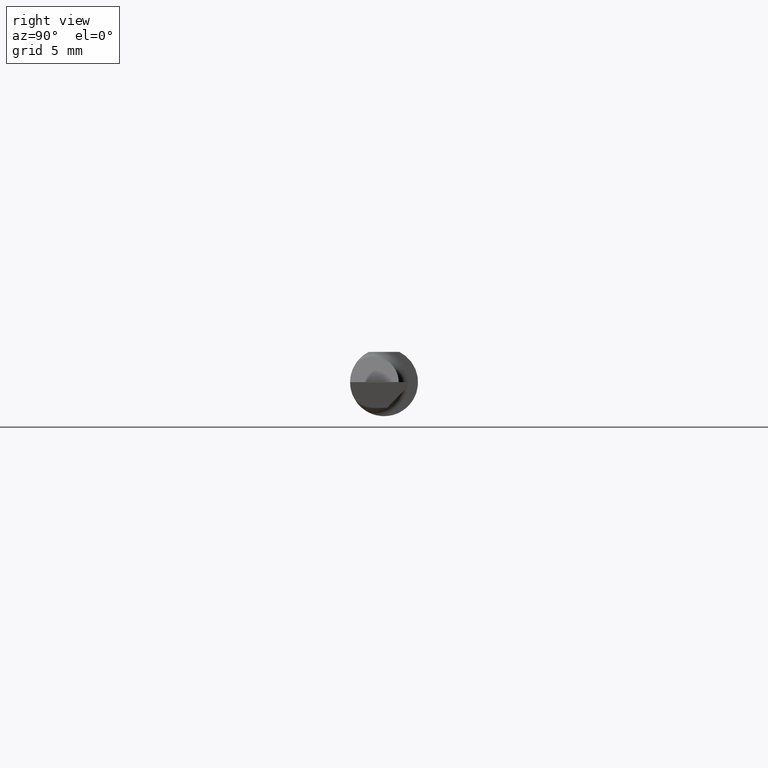
[diagram: clean part render]
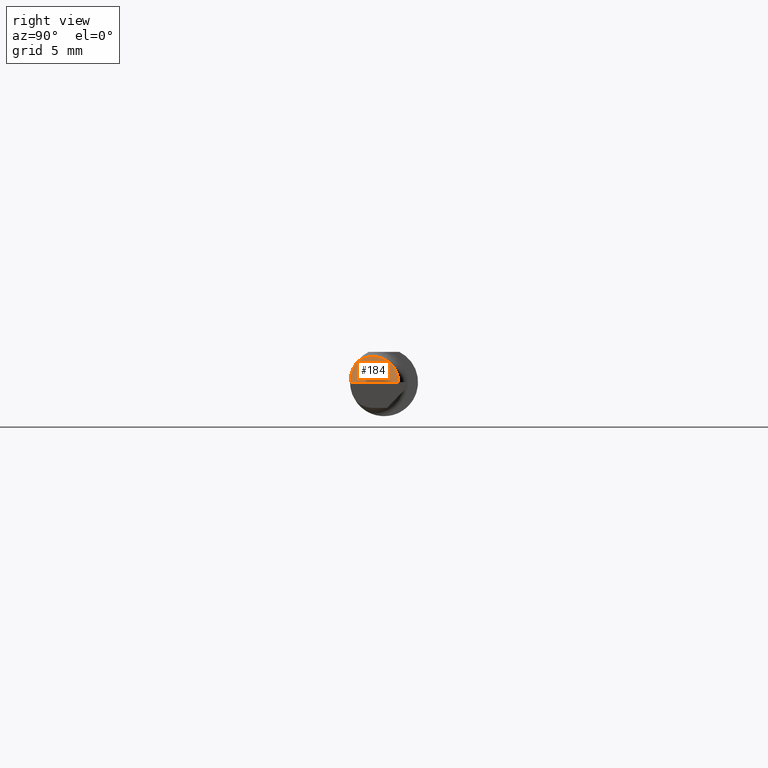
[diagram: same view with one face highlighted and labeled with its STEP entity id]
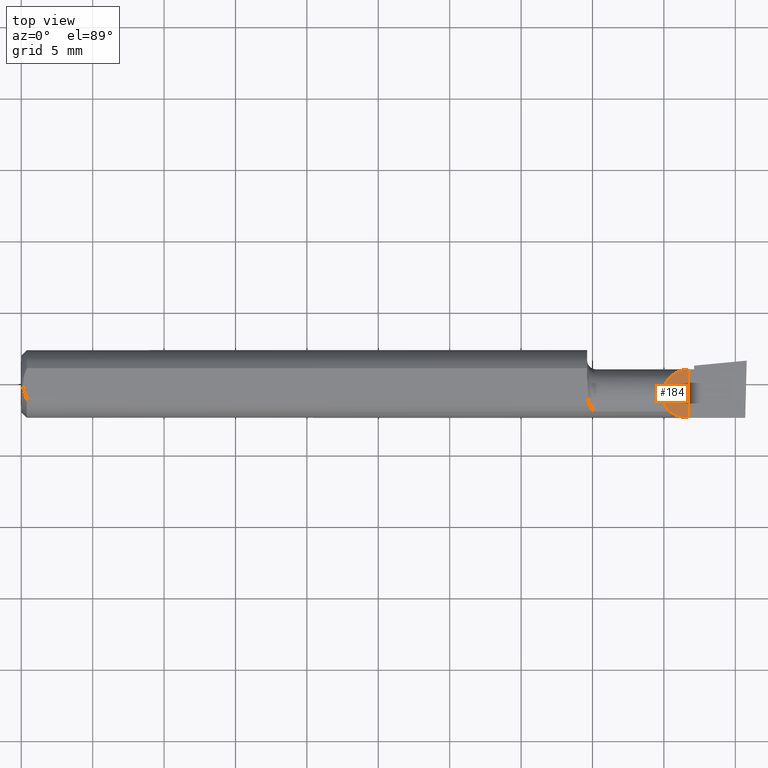
[diagram: same view with one face highlighted and labeled with its STEP entity id]
A machine part, right view. The second image highlights one B-rep face of the part: STEP entity #184.
A second angle (top view) of the same face is appended — the face is thin or edge-on in the first view.
In plain terms, the highlighted planar face has unit normal (-0.7071, 0, -0.7071).
Its self-contained STEP definition (entity closure, byte-faithful):
#11 = VERTEX_POINT ( 'NONE', #61 ) ;
#20 = VERTEX_POINT ( 'NONE', #417 ) ;
#22 = CARTESIAN_POINT ( 'NONE',  ( 1.840000000000000080, -0.09360000000000005815, 1.959434878635762025E-17 ) ) ;
#41 = EDGE_CURVE ( 'NONE', #577, #20, #498, .T. ) ;
#61 = CARTESIAN_POINT ( 'NONE',  ( 1.840000000000000080, -0.09360000000000005815, 1.959434878635762025E-17 ) ) ;
#80 = ORIENTED_EDGE ( 'NONE', *, *, #562, .F. ) ;
#89 =( BOUNDED_CURVE ( )  B_SPLINE_CURVE ( 3, ( #22, #438, #162, #391 ),
 .UNSPECIFIED., .F., .T. ) 
 B_SPLINE_CURVE_WITH_KNOTS ( ( 4, 4 ),
 ( 4.712388980384689674, 5.327100436569646824 ),
 .UNSPECIFIED. ) 
 CURVE ( )  GEOMETRIC_REPRESENTATION_ITEM ( )  RATIONAL_B_SPLINE_CURVE ( ( 1.000000000000000000, 0.9687579316594155943, 0.9687579316594155943, 1.000000000000000000 ) ) 
 REPRESENTATION_ITEM ( '' )  );
#157 = DIRECTION ( 'NONE',  ( -0.7071067811865433539, 0.0000000000000000000, -0.7071067811865516806 ) ) ;
#162 = CARTESIAN_POINT ( 'NONE',  ( 1.801938678439108932, -0.08770433171880961942, 0.03806132156089080121 ) ) ;
#173 = AXIS2_PLACEMENT_3D ( 'NONE', #345, #157, #387 ) ;
#184 = ADVANCED_FACE ( 'NONE', ( #495 ), #208, .F. ) ;
#208 = PLANE ( 'NONE',  #173 ) ;
#233 = ORIENTED_EDGE ( 'NONE', *, *, #41, .F. ) ;
#238 = CARTESIAN_POINT ( 'NONE',  ( 1.786018743734982150, -0.07646557377049187365, 0.05398125626501727031 ) ) ;
#259 = EDGE_CURVE ( 'NONE', #11, #20, #467, .T. ) ;
#260 = CARTESIAN_POINT ( 'NONE',  ( 1.840000000000000080, -0.2500000000000000555, 1.959434878635762025E-17 ) ) ;
#283 = CARTESIAN_POINT ( 'NONE',  ( 1.769987205483423143, 0.04039999999999997760, 0.07001279451657600739 ) ) ;
#303 = CARTESIAN_POINT ( 'NONE',  ( 1.786018743734982150, -0.07646557377049187365, 0.05398125626501727031 ) ) ;
#345 = CARTESIAN_POINT ( 'NONE',  ( 1.840000000000000080, -0.2500000000000000555, 1.959434878635762025E-17 ) ) ;
#375 = CARTESIAN_POINT ( 'NONE',  ( 1.840000000000000080, 0.04039999999999989433, 1.959434878635762025E-17 ) ) ;
#387 = DIRECTION ( 'NONE',  ( -0.7071067811865516806, 0.0000000000000000000, 0.7071067811865433539 ) ) ;
#391 = CARTESIAN_POINT ( 'NONE',  ( 1.786018743734982150, -0.07646557377049187365, 0.05398125626501727031 ) ) ;
#417 = CARTESIAN_POINT ( 'NONE',  ( 1.840000000000000080, 0.04039999999999989433, 1.959434878635762025E-17 ) ) ;
#438 = CARTESIAN_POINT ( 'NONE',  ( 1.820512722067858524, -0.09360000000000003040, 0.01948727793214133017 ) ) ;
#467 = LINE ( 'NONE', #260, #479 ) ;
#470 = ORIENTED_EDGE ( 'NONE', *, *, #259, .T. ) ;
#479 = VECTOR ( 'NONE', #594, 39.37007874015748143 ) ;
#495 = FACE_OUTER_BOUND ( 'NONE', #546, .T. ) ;
#498 =( BOUNDED_CURVE ( )  B_SPLINE_CURVE ( 3, ( #238, #558, #283, #375 ),
 .UNSPECIFIED., .F., .T. ) 
 B_SPLINE_CURVE_WITH_KNOTS ( ( 4, 4 ),
 ( 5.577815324852164025, 7.853981633974482790 ),
 .UNSPECIFIED. ) 
 CURVE ( )  GEOMETRIC_REPRESENTATION_ITEM ( )  RATIONAL_B_SPLINE_CURVE ( ( 1.000000000000000000, 0.6128902971210724582, 0.6128902971210724582, 1.000000000000000000 ) ) 
 REPRESENTATION_ITEM ( '' )  );
#546 = EDGE_LOOP ( 'NONE', ( #233, #80, #470 ) ) ;
#558 = CARTESIAN_POINT ( 'NONE',  ( 1.740628359091399568, -0.02315981068686312830, 0.09937164090859931798 ) ) ;
#562 = EDGE_CURVE ( 'NONE', #11, #577, #89, .T. ) ;
#577 = VERTEX_POINT ( 'NONE', #303 ) ;
#594 = DIRECTION ( 'NONE',  ( -0.0000000000000000000, 1.000000000000000000, -0.0000000000000000000 ) ) ;